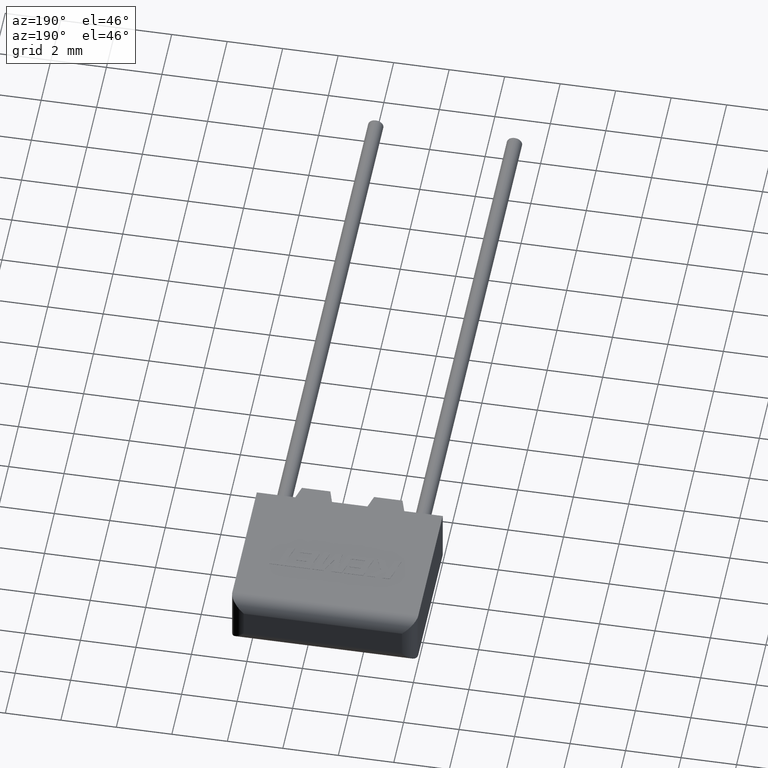
[diagram: clean part render]
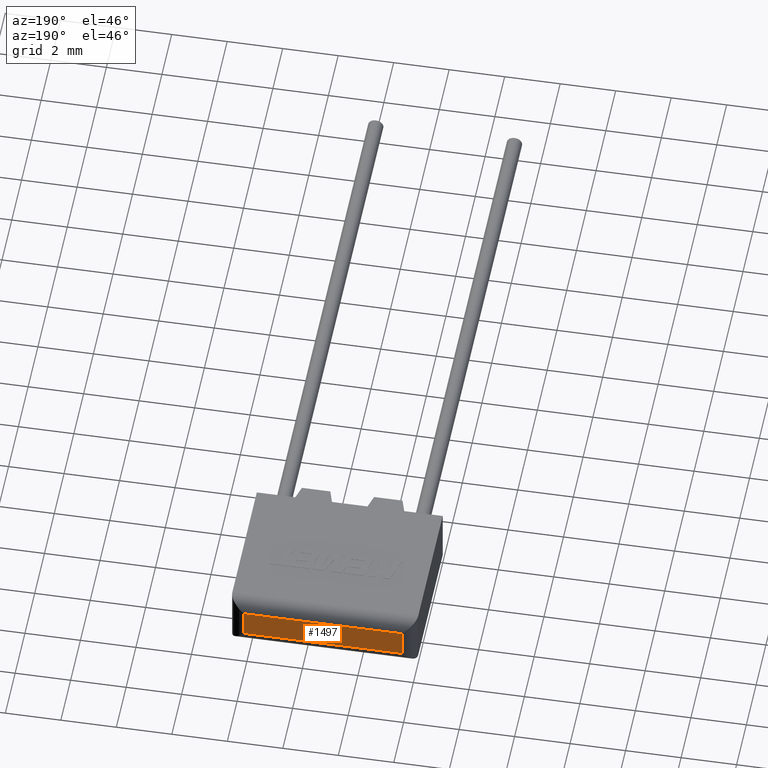
[diagram: same view with one face highlighted and labeled with its STEP entity id]
A machine part, auxiliary view. The second image highlights one B-rep face of the part: STEP entity #1497.
In plain terms, the highlighted planar face has unit normal (0, -1, 0).
Its self-contained STEP definition (entity closure, byte-faithful):
#114 = EDGE_CURVE ( 'NONE', #2211, #2245, #600, .T. ) ;
#131 = EDGE_CURVE ( 'NONE', #2807, #2211, #1106, .T. ) ;
#177 = LINE ( 'NONE', #2879, #1346 ) ;
#181 = CARTESIAN_POINT ( 'NONE',  ( 6.200000000000001100, 5.500000000000000000, 0.5000000000000000000 ) ) ;
#254 = VERTEX_POINT ( 'NONE', #3107 ) ;
#268 = CARTESIAN_POINT ( 'NONE',  ( 0.5000000000000000000, 5.500000000000000000, 0.5000000000000000000 ) ) ;
#310 = EDGE_CURVE ( 'NONE', #254, #2807, #177, .T. ) ;
#329 = VECTOR ( 'NONE', #2831, 1000.000000000000000 ) ;
#382 = CARTESIAN_POINT ( 'NONE',  ( 0.5000000000000000000, 5.500000000000000000, 2.000000000000000000 ) ) ;
#600 = LINE ( 'NONE', #382, #329 ) ;
#822 = VECTOR ( 'NONE', #849, 1000.000000000000000 ) ;
#849 = DIRECTION ( 'NONE',  ( -1.000000000000000000, 0.0000000000000000000, 0.0000000000000000000 ) ) ;
#972 = FACE_OUTER_BOUND ( 'NONE', #1362, .T. ) ;
#1007 = CARTESIAN_POINT ( 'NONE',  ( 0.5000000000000000000, 5.500000000000000000, 1.500000000000000000 ) ) ;
#1029 = DIRECTION ( 'NONE',  ( 1.000000000000000000, -0.0000000000000000000, -0.0000000000000000000 ) ) ;
#1106 = LINE ( 'NONE', #1883, #822 ) ;
#1136 = EDGE_CURVE ( 'NONE', #2245, #254, #1251, .T. ) ;
#1251 = LINE ( 'NONE', #1690, #3185 ) ;
#1346 = VECTOR ( 'NONE', #3145, 1000.000000000000000 ) ;
#1362 = EDGE_LOOP ( 'NONE', ( #2374, #3044, #1437, #1396 ) ) ;
#1396 = ORIENTED_EDGE ( 'NONE', *, *, #114, .T. ) ;
#1437 = ORIENTED_EDGE ( 'NONE', *, *, #131, .T. ) ;
#1439 = CARTESIAN_POINT ( 'NONE',  ( 0.0000000000000000000, 5.500000000000000000, 2.000000000000000000 ) ) ;
#1497 = ADVANCED_FACE ( 'NONE', ( #972 ), #1674, .F. ) ;
#1674 = PLANE ( 'NONE',  #2811 ) ;
#1690 = CARTESIAN_POINT ( 'NONE',  ( 0.0000000000000000000, 5.500000000000000000, 1.500000000000000000 ) ) ;
#1883 = CARTESIAN_POINT ( 'NONE',  ( 0.0000000000000000000, 5.500000000000000000, 0.5000000000000000000 ) ) ;
#1938 = DIRECTION ( 'NONE',  ( 0.0000000000000000000, -1.000000000000000000, 0.0000000000000000000 ) ) ;
#2211 = VERTEX_POINT ( 'NONE', #268 ) ;
#2245 = VERTEX_POINT ( 'NONE', #1007 ) ;
#2374 = ORIENTED_EDGE ( 'NONE', *, *, #1136, .T. ) ;
#2411 = DIRECTION ( 'NONE',  ( 0.0000000000000000000, -0.0000000000000000000, -1.000000000000000000 ) ) ;
#2807 = VERTEX_POINT ( 'NONE', #181 ) ;
#2811 = AXIS2_PLACEMENT_3D ( 'NONE', #1439, #1938, #2411 ) ;
#2831 = DIRECTION ( 'NONE',  ( -0.0000000000000000000, -0.0000000000000000000, 1.000000000000000000 ) ) ;
#2879 = CARTESIAN_POINT ( 'NONE',  ( 6.200000000000001100, 5.500000000000000000, 2.000000000000000000 ) ) ;
#3044 = ORIENTED_EDGE ( 'NONE', *, *, #310, .T. ) ;
#3107 = CARTESIAN_POINT ( 'NONE',  ( 6.200000000000001100, 5.500000000000000000, 1.500000000000000000 ) ) ;
#3145 = DIRECTION ( 'NONE',  ( 0.0000000000000000000, 0.0000000000000000000, -1.000000000000000000 ) ) ;
#3185 = VECTOR ( 'NONE', #1029, 1000.000000000000000 ) ;